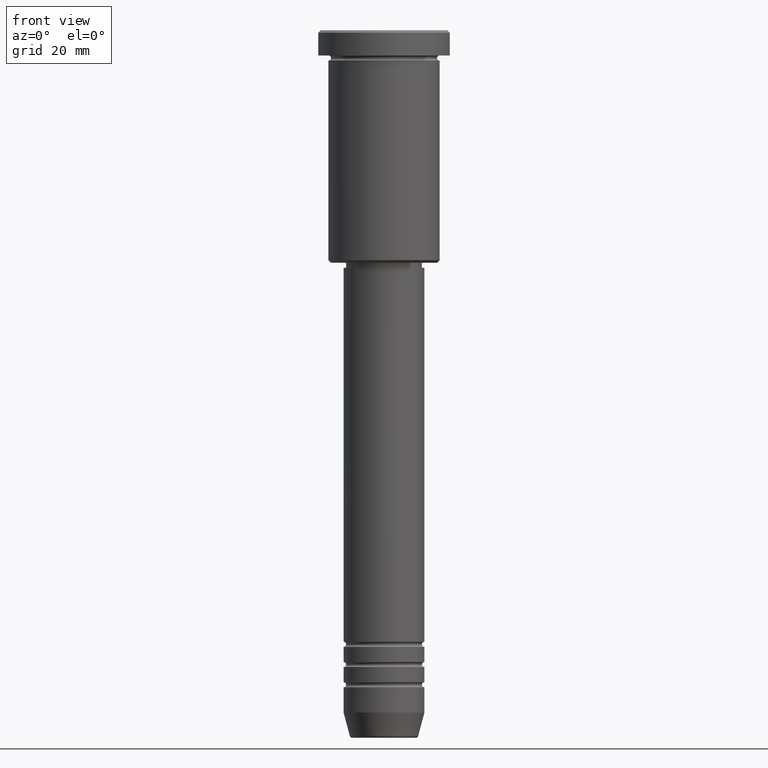
[diagram: clean part render]
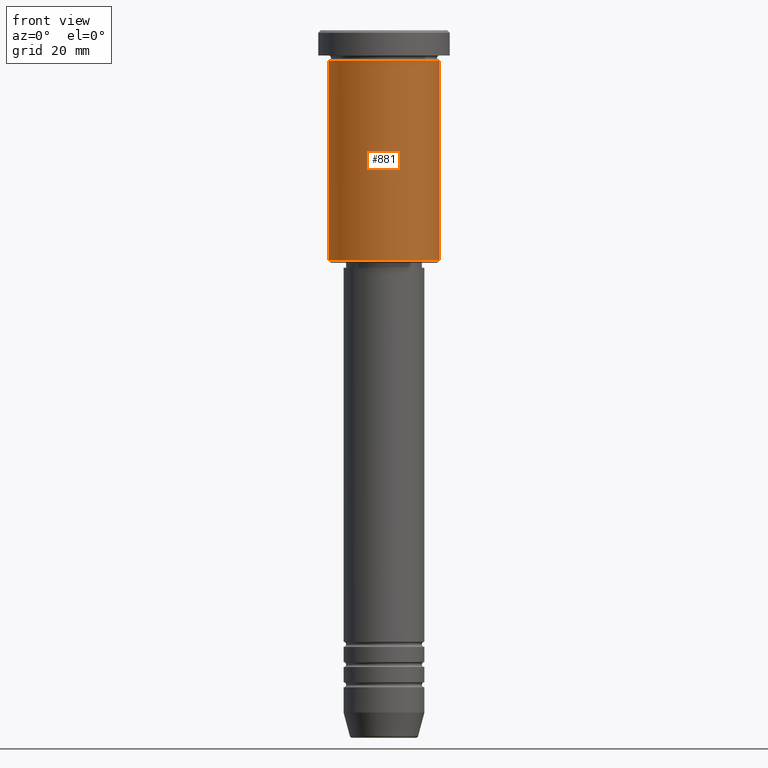
[diagram: same view with one face highlighted and labeled with its STEP entity id]
A machine part, front view. The second image highlights one B-rep face of the part: STEP entity #881.
In plain terms, the highlighted cylindrical surface (partial cylindrical patch) has radius 11 mm, axis along (-0, -0, 1).
Its self-contained STEP definition (entity closure, byte-faithful):
#50 = CARTESIAN_POINT ( 'NONE',  ( 11.00000000000000000, 0.000000000000000000, -5.999999999999999112 ) ) ;
#60 = DIRECTION ( 'NONE',  ( -0.000000000000000000, -0.000000000000000000, 1.000000000000000000 ) ) ;
#78 = EDGE_CURVE ( 'NONE', #270, #103, #897, .T. ) ;
#103 = VERTEX_POINT ( 'NONE', #717 ) ;
#199 = CARTESIAN_POINT ( 'NONE',  ( -11.00000000000000000, 1.347111479062088405E-15, -5.999999999999999112 ) ) ;
#252 = LINE ( 'NONE', #1146, #991 ) ;
#261 = AXIS2_PLACEMENT_3D ( 'NONE', #710, #606, #1069 ) ;
#270 = VERTEX_POINT ( 'NONE', #457 ) ;
#275 = CARTESIAN_POINT ( 'NONE',  ( -11.00000000000000000, 1.347111479062088405E-15, 0.000000000000000000 ) ) ;
#287 = DIRECTION ( 'NONE',  ( -0.000000000000000000, -0.000000000000000000, 1.000000000000000000 ) ) ;
#319 = CIRCLE ( 'NONE', #261, 11.00000000000000000 ) ;
#425 = DIRECTION ( 'NONE',  ( 1.000000000000000000, 0.000000000000000000, 0.000000000000000000 ) ) ;
#456 = EDGE_CURVE ( 'NONE', #270, #666, #826, .T. ) ;
#457 = CARTESIAN_POINT ( 'NONE',  ( -11.00000000000000000, 1.347111479062088405E-15, -45.49999999999998579 ) ) ;
#549 = AXIS2_PLACEMENT_3D ( 'NONE', #1108, #287, #660 ) ;
#573 = DIRECTION ( 'NONE',  ( -0.000000000000000000, -0.000000000000000000, 1.000000000000000000 ) ) ;
#603 = CARTESIAN_POINT ( 'NONE',  ( 0.000000000000000000, 0.000000000000000000, 0.000000000000000000 ) ) ;
#606 = DIRECTION ( 'NONE',  ( -0.000000000000000000, -0.000000000000000000, 1.000000000000000000 ) ) ;
#660 = DIRECTION ( 'NONE',  ( -1.000000000000000000, 0.000000000000000000, 0.000000000000000000 ) ) ;
#666 = VERTEX_POINT ( 'NONE', #199 ) ;
#694 = FACE_OUTER_BOUND ( 'NONE', #945, .T. ) ;
#710 = CARTESIAN_POINT ( 'NONE',  ( 0.000000000000000000, 0.000000000000000000, -5.999999999999999112 ) ) ;
#717 = CARTESIAN_POINT ( 'NONE',  ( 11.00000000000000000, 0.000000000000000000, -45.49999999999998579 ) ) ;
#785 = ORIENTED_EDGE ( 'NONE', *, *, #456, .F. ) ;
#826 = LINE ( 'NONE', #275, #1014 ) ;
#868 = CYLINDRICAL_SURFACE ( 'NONE', #1158, 11.00000000000000000 ) ;
#881 = ADVANCED_FACE ( 'NONE', ( #694 ), #868, .T. ) ;
#887 = EDGE_CURVE ( 'NONE', #666, #918, #319, .T. ) ;
#897 = CIRCLE ( 'NONE', #549, 11.00000000000000000 ) ;
#918 = VERTEX_POINT ( 'NONE', #50 ) ;
#919 = EDGE_CURVE ( 'NONE', #103, #918, #252, .T. ) ;
#945 = EDGE_LOOP ( 'NONE', ( #785, #1164, #1129, #1171 ) ) ;
#991 = VECTOR ( 'NONE', #1150, 1000.000000000000000 ) ;
#1014 = VECTOR ( 'NONE', #573, 1000.000000000000000 ) ;
#1069 = DIRECTION ( 'NONE',  ( 1.000000000000000000, 0.000000000000000000, 0.000000000000000000 ) ) ;
#1108 = CARTESIAN_POINT ( 'NONE',  ( 0.000000000000000000, 0.000000000000000000, -45.49999999999998579 ) ) ;
#1129 = ORIENTED_EDGE ( 'NONE', *, *, #919, .T. ) ;
#1146 = CARTESIAN_POINT ( 'NONE',  ( 11.00000000000000000, 0.000000000000000000, 0.000000000000000000 ) ) ;
#1150 = DIRECTION ( 'NONE',  ( -0.000000000000000000, -0.000000000000000000, 1.000000000000000000 ) ) ;
#1158 = AXIS2_PLACEMENT_3D ( 'NONE', #603, #60, #425 ) ;
#1164 = ORIENTED_EDGE ( 'NONE', *, *, #78, .T. ) ;
#1171 = ORIENTED_EDGE ( 'NONE', *, *, #887, .F. ) ;